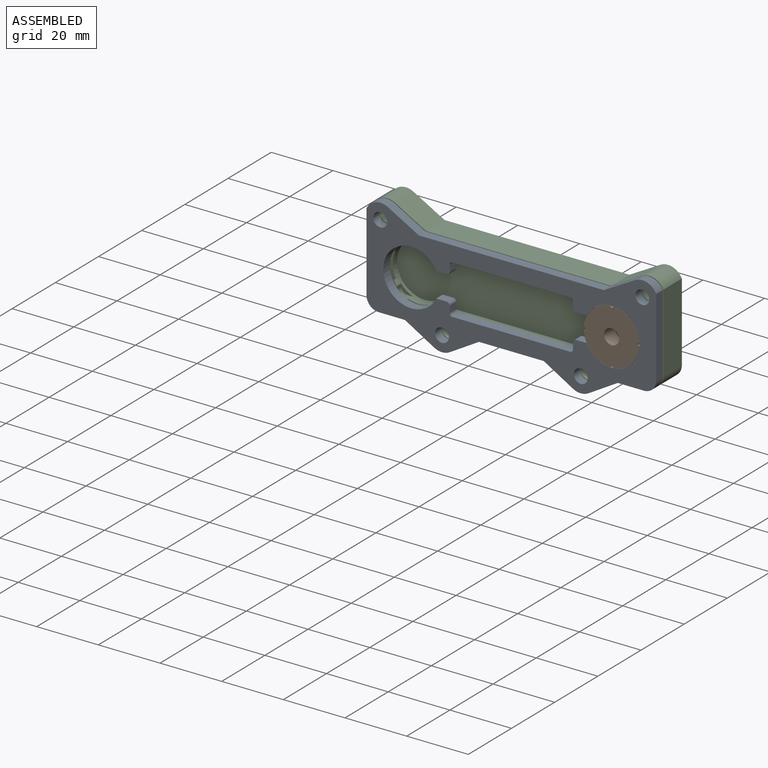
[diagram: assembled view]
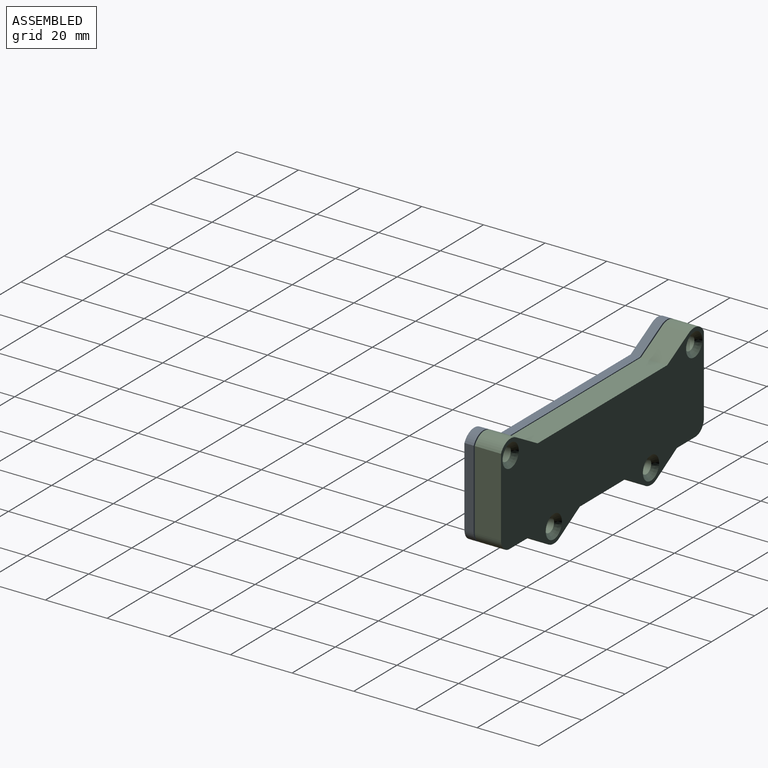
[diagram: assembled view, second angle]
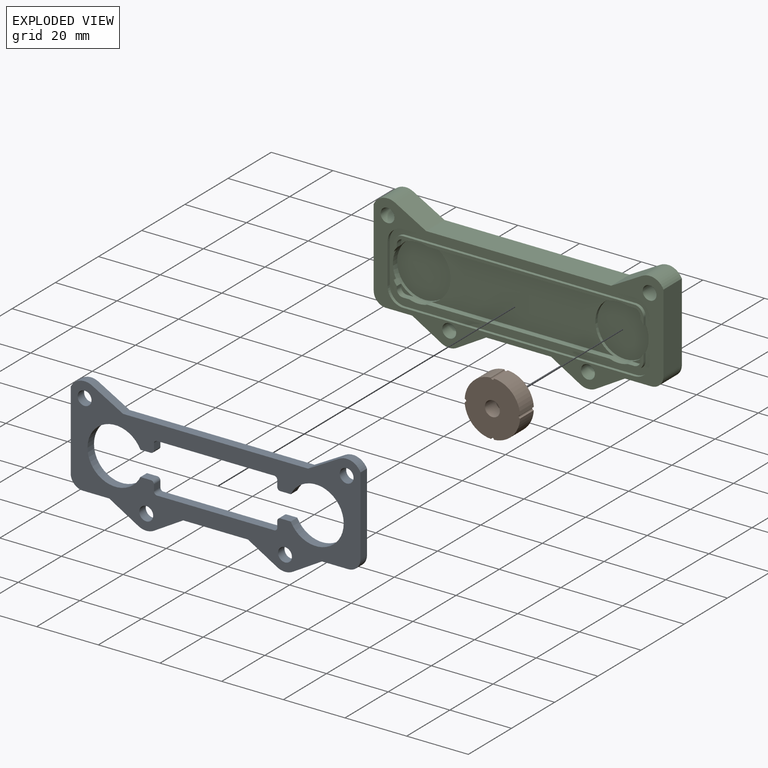
[diagram: exploded view]
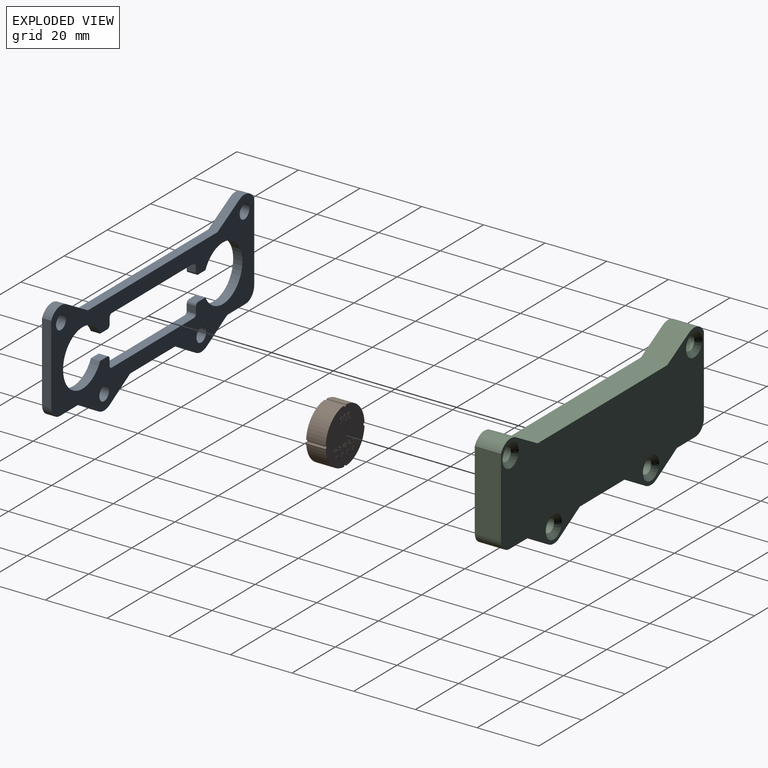
[diagram: exploded view, second angle]
ASSEMBLY  parts=3 mates=2
PART A: 44 faces, bbox 94x3x38.5 mm
  f0: plane 94x38.5mm, normal (0,1,0), area 1460.2mm2, adj f2,f3,f4,f5,f6,f7,f8,f9
  f1: plane 94x38.5mm, normal (0,-1,0), area 1460.2mm2, adj f2,f3,f4,f5,f6,f7,f8,f9
  f2: plane 21x3mm, normal (0,0,1), area 63mm2, adj f0,f1,f3,f22
  f3: plane 9.47x5.56mm, normal (-0.51,0,0.86), area 32.9mm2, adj f0,f1,f2,f4
  f4: cylinder r=5mm len=5.07mm, axis (0,-1,0), area 15.9mm2, adj f0,f1,f3,f5
  f5: plane 9.47x5.56mm, normal (0.51,0,0.86), area 32.9mm2, adj f0,f1,f4,f6
  f6: plane 8.5x3mm, normal (0,0,1), area 25.5mm2, adj f0,f1,f5,f7
  f7: cylinder r=4mm len=4mm, axis (0,-1,0), area 18.8mm2, adj f0,f1,f6,f8
  f8: plane 25.43x3mm, normal (1,0,0), area 76.3mm2, adj f0,f1,f7,f9
  f9: cylinder r=5mm len=6.94mm, axis (0,-1,0), area 24.4mm2, adj f0,f1,f8,f10
  f10: plane 10.06x5.62mm, normal (-0.49,0,-0.87), area 34.6mm2, adj f0,f1,f9,f11
  f11: plane 60x3mm, normal (0,0,-1), area 180mm2, adj f0,f1,f10,f12
  f12: plane 10.06x5.62mm, normal (0.49,0,-0.87), area 34.6mm2, adj f0,f1,f11,f13
  f13: cylinder r=5mm len=6.94mm, axis (0,-1,0), area 24.4mm2, adj f0,f1,f12,f14
  f14: plane 25.43x3mm, normal (-1,0,0), area 76.3mm2, adj f0,f1,f13,f15
  f15: cylinder r=4mm len=4mm, axis (0,-1,0), area 18.8mm2, adj f0,f1,f14,f16
  f16: plane 8.5x3mm, normal (0,0,1), area 25.5mm2, adj f0,f1,f15,f17
  f17: plane 9.47x5.56mm, normal (-0.51,0,0.86), area 32.9mm2, adj f0,f1,f16,f18
  f18: cylinder r=5mm len=5.07mm, axis (0,-1,0), area 15.9mm2, adj f0,f1,f17,f22
  f19: cylinder r=2.25mm len=4.5mm, axis (0,-1,0), area 42.4mm2, adj f0,f1
  f20: cylinder r=2.25mm len=4.5mm, axis (0,-1,0), area 42.4mm2, adj f0,f1
  f21: cylinder r=2.25mm len=4.5mm, axis (0,-1,0), area 42.4mm2, adj f0,f1
  f22: plane 9.47x5.56mm, normal (0.51,0,0.86), area 32.9mm2, adj f0,f1,f2,f18
  f23: cylinder r=2.25mm len=4.5mm, axis (0,-1,0), area 42.4mm2, adj f0,f1
  f24: cylinder r=1mm len=3mm, axis (0,1,0), area 4.7mm2, adj f0,f1,f25,f43
  f25: plane 3.38x3mm, normal (0,0,-1), area 10.1mm2, adj f0,f1,f24,f26
  f26: cylinder r=9.05mm len=18.1mm, axis (0,1,0), area 145.7mm2, adj f0,f1,f25,f27
  f27: plane 3.38x3mm, normal (0,0,1), area 10.1mm2, adj f0,f1,f26,f28
  f28: cylinder r=1mm len=3mm, axis (0,1,0), area 4.7mm2, adj f0,f1,f27,f29
  f29: plane 3x2mm, normal (-1,0,0), area 6mm2, adj f0,f1,f28,f30
  f30: cylinder r=1mm len=3mm, axis (0,1,0), area 4.7mm2, adj f0,f1,f29,f31
  f31: plane 38x3mm, normal (0,0,1), area 114mm2, adj f0,f1,f30,f32
  f32: cylinder r=1mm len=3mm, axis (0,1,0), area 4.7mm2, adj f0,f1,f31,f33
  f33: plane 3x2mm, normal (1,0,0), area 6mm2, adj f0,f1,f32,f34
  f34: cylinder r=1mm len=3mm, axis (0,1,0), area 4.7mm2, adj f0,f1,f33,f35
  f35: plane 3.38x3mm, normal (0,0,1), area 10.1mm2, adj f0,f1,f34,f36
  f36: cylinder r=9.05mm len=18.1mm, axis (0,1,0), area 145.7mm2, adj f0,f1,f35,f37
  f37: plane 3.38x3mm, normal (0,0,-1), area 10.1mm2, adj f0,f1,f36,f38
  f38: cylinder r=1mm len=3mm, axis (0,1,0), area 4.7mm2, adj f0,f1,f37,f39
  f39: plane 3x2mm, normal (1,0,0), area 6mm2, adj f0,f1,f38,f40
  f40: cylinder r=1mm len=3mm, axis (0,1,0), area 4.7mm2, adj f0,f1,f39,f41
  f41: plane 38x3mm, normal (0,0,-1), area 114mm2, adj f0,f1,f40,f42
  f42: cylinder r=1mm len=3mm, axis (0,1,0), area 4.7mm2, adj f0,f1,f41,f43
  f43: plane 3x2mm, normal (-1,0,0), area 6mm2, adj f0,f1,f24,f42
PART B: 228 faces, bbox 18x6.5x18 mm
  f0: plane 17.97x17.97mm, normal (0,1,0), area 236.4mm2, adj f1,f2,f3,f4,f5,f6,f7,f8
  f1: cylinder r=0.5mm len=6.35mm, axis (0,1,0), area 9.8mm2, adj f0,f2,f8,f9
  f2: cylinder r=9mm len=8.49mm, axis (0,1,0), area 83.4mm2, adj f0,f1,f3,f9
  f3: cylinder r=0.5mm len=6.35mm, axis (0,1,0), area 9.8mm2, adj f0,f2,f4,f9
  f4: cylinder r=9mm len=8.49mm, axis (0,1,0), area 83.4mm2, adj f0,f3,f5,f9
  f5: cylinder r=0.5mm len=6.35mm, axis (0,1,0), area 9.8mm2, adj f0,f4,f6,f9
  f6: cylinder r=9mm len=8.49mm, axis (0,1,0), area 83.4mm2, adj f0,f5,f7,f9
  f7: cylinder r=0.5mm len=6.35mm, axis (0,1,0), area 9.8mm2, adj f0,f6,f8,f9
  f8: cylinder r=9mm len=8.49mm, axis (0,1,0), area 83.4mm2, adj f0,f1,f7,f9
  f9: plane 17.97x17.97mm, normal (0,-1,0), area 234.1mm2, adj f1,f2,f3,f4,f5,f6,f7,f8
  f10: cylinder r=2.45mm len=5mm, axis (0,-1,0), area 77mm2, adj f9,f11
  f11: plane 4.9x4.9mm, normal (0,-1,0), area 18.9mm2, adj f10
  f12: plane 1x0.1mm, normal (-1,0,0), area 0.1mm2, adj f0,f13,f15,f16
  f13: plane 1x0.1mm, normal (0,0,1), area 0.1mm2, adj f0,f12,f14,f16
  f14: plane 1x0.1mm, normal (1,0,0), area 0.1mm2, adj f0,f13,f15,f16
  f15: plane 1x0.1mm, normal (0,0,-1), area 0.1mm2, adj f0,f12,f14,f16
  f16: plane 1x1mm, normal (0,1,0), area 1mm2, adj f12,f13,f14,f15
  f17: plane 1x0.1mm, normal (-1,0,0), area 0.1mm2, adj f0,f18,f20,f21
  f18: plane 1x0.1mm, normal (0,0,1), area 0.1mm2, adj f0,f17,f19,f21
  f19: plane 1x0.1mm, normal (1,0,0), area 0.1mm2, adj f0,f18,f20,f21
  f20: plane 1x0.1mm, normal (0,0,-1), area 0.1mm2, adj f0,f17,f19,f21
  f21: plane 1x1mm, normal (0,1,0), area 1mm2, adj f17,f18,f19,f20
  f22: plane 1x0.1mm, normal (-1,0,0), area 0.1mm2, adj f0,f23,f25,f26
  f23: plane 1x0.1mm, normal (0,0,1), area 0.1mm2, adj f0,f22,f24,f26
  f24: plane 1x0.1mm, normal (1,0,0), area 0.1mm2, adj f0,f23,f25,f26
  f25: plane 1x0.1mm, normal (0,0,-1), area 0.1mm2, adj f0,f22,f24,f26
  f26: plane 1x1mm, normal (0,1,0), area 1mm2, adj f22,f23,f24,f25
  f27: plane 1x0.1mm, normal (1,0,0), area 0.1mm2, adj f0,f28,f30,f31
  f28: plane 1x0.1mm, normal (0,0,-1), area 0.1mm2, adj f0,f27,f29,f31
  f29: plane 1x0.1mm, normal (-1,0,0), area 0.1mm2, adj f0,f28,f30,f31
  f30: plane 1x0.1mm, normal (0,0,1), area 0.1mm2, adj f0,f27,f29,f31
  f31: plane 1x1mm, normal (0,1,0), area 1mm2, adj f27,f28,f29,f30
  f32: plane 0.47x0.1mm, normal (0,0,-1), area 0mm2, adj f0,f33,f41,f42
  f33: plane 2.24x0.1mm, normal (-1,0,0), area 0.2mm2, adj f0,f32,f34,f42
  f34: plane 0.39x0.1mm, normal (0,0,1), area 0mm2, adj f0,f33,f35,f42
  f35: plane 0.72x0.57mm, normal (0.62,0,0.78), area 0.1mm2, adj f0,f34,f36,f42
  f36: plane 0.28x0.23mm, normal (0.78,0,-0.63), area 0mm2, adj f0,f35,f37,f42
  f37: plane 0.26x0.21mm, normal (-0.63,0,-0.78), area 0mm2, adj f0,f36,f38,f42
  f38: extruded ~0.16x0.15mm, area 0mm2, adj f0,f37,f39,f42
  f39: plane 0.23x0.1mm, normal (1,0,0.03), area 0mm2, adj f0,f38,f40,f42
  f40: plane 0.21x0.1mm, normal (1,0,0.02), area 0mm2, adj f0,f39,f41,f42
  f41: plane 1.3x0.1mm, normal (1,0,0), area 0.1mm2, adj f0,f32,f40,f42
  f42: plane 2.24x1.11mm, normal (0,1,0), area 1.3mm2, adj f32,f33,f34,f35,f36,f37,f38,f39
  f43: extruded ~0.59x0.1mm, area 0.1mm2, adj f44,f58,f59,f60
  f44: extruded ~0.59x0.1mm, area 0.1mm2, adj f43,f45,f59,f60
  f45: extruded ~0.24x0.18mm, area 0mm2, adj f44,f46,f59,f60
  f46: extruded ~0.24x0.18mm, area 0mm2, adj f45,f47,f59,f60
  f47: extruded ~0.59x0.1mm, area 0.1mm2, adj f46,f48,f59,f60
  f48: extruded ~0.59x0.1mm, area 0.1mm2, adj f47,f49,f59,f60
  f49: extruded ~0.24x0.18mm, area 0mm2, adj f48,f58,f59,f60
  f50: extruded ~0.87x0.19mm, area 0.1mm2, adj f0,f51,f57,f59
  f51: extruded ~0.86x0.2mm, area 0.1mm2, adj f0,f50,f52,f59
  f52: extruded ~0.59x0.29mm, area 0.1mm2, adj f0,f51,f53,f59
  f53: extruded ~0.59x0.28mm, area 0.1mm2, adj f0,f52,f54,f59
  f54: extruded ~0.87x0.19mm, area 0.1mm2, adj f0,f53,f55,f59
  f55: extruded ~0.86x0.2mm, area 0.1mm2, adj f0,f54,f56,f59
  f56: extruded ~0.58x0.29mm, area 0.1mm2, adj f0,f55,f57,f59
  f57: extruded ~0.59x0.28mm, area 0.1mm2, adj f0,f50,f56,f59
  f58: extruded ~0.24x0.18mm, area 0mm2, adj f43,f49,f59,f60
  f59: plane 2.31x1.57mm, normal (0,1,0), area 2.2mm2, adj f43,f44,f45,f46,f47,f48,f49,f50
  f60: plane 1.54x0.62mm, normal (0,1,0), area 0.8mm2, adj f43,f44,f45,f46,f47,f48,f49,f58
  f61: extruded ~0.59x0.1mm, area 0.1mm2, adj f62,f76,f77,f78
  f62: extruded ~0.59x0.1mm, area 0.1mm2, adj f61,f63,f77,f78
  f63: extruded ~0.24x0.18mm, area 0mm2, adj f62,f64,f77,f78
  f64: extruded ~0.24x0.18mm, area 0mm2, adj f63,f65,f77,f78
  f65: extruded ~0.59x0.1mm, area 0.1mm2, adj f64,f66,f77,f78
  f66: extruded ~0.59x0.1mm, area 0.1mm2, adj f65,f67,f77,f78
  f67: extruded ~0.24x0.18mm, area 0mm2, adj f66,f76,f77,f78
  f68: extruded ~0.87x0.19mm, area 0.1mm2, adj f0,f69,f75,f77
  f69: extruded ~0.86x0.2mm, area 0.1mm2, adj f0,f68,f70,f77
  f70: extruded ~0.59x0.29mm, area 0.1mm2, adj f0,f69,f71,f77
  f71: extruded ~0.59x0.28mm, area 0.1mm2, adj f0,f70,f72,f77
  f72: extruded ~0.87x0.19mm, area 0.1mm2, adj f0,f71,f73,f77
  f73: extruded ~0.86x0.2mm, area 0.1mm2, adj f0,f72,f74,f77
  f74: extruded ~0.58x0.29mm, area 0.1mm2, adj f0,f73,f75,f77
  f75: extruded ~0.59x0.28mm, area 0.1mm2, adj f0,f68,f74,f77
  f76: extruded ~0.24x0.18mm, area 0mm2, adj f61,f67,f77,f78
  f77: plane 2.31x1.57mm, normal (0,1,0), area 2.2mm2, adj f61,f62,f63,f64,f65,f66,f67,f68
  f78: plane 1.54x0.62mm, normal (0,1,0), area 0.8mm2, adj f61,f62,f63,f64,f65,f66,f67,f76
  f79: plane 0.27x0.1mm, normal (0,0,1), area 0mm2, adj f0,f80,f88,f89
  f80: plane 0.74x0.24mm, normal (0.95,0,0.3), area 0.1mm2, adj f0,f79,f81,f89
  f81: extruded ~0.28x0.1mm, area 0mm2, adj f0,f80,f82,f89
  f82: extruded ~0.12x0.1mm, area 0mm2, adj f0,f81,f83,f89
  f83: extruded ~0.15x0.1mm, area 0mm2, adj f0,f82,f84,f89
  f84: plane 0.74x0.24mm, normal (-0.95,0,0.3), area 0.1mm2, adj f0,f83,f85,f89
  f85: plane 0.27x0.1mm, normal (0,0,1), area 0mm2, adj f0,f84,f86,f89
  f86: plane 1.25x0.42mm, normal (0.95,0,-0.32), area 0.1mm2, adj f0,f85,f87,f89
  f87: plane 0.29x0.1mm, normal (0,0,-1), area 0mm2, adj f0,f86,f88,f89
  f88: plane 1.25x0.43mm, normal (-0.95,0,-0.32), area 0.1mm2, adj f0,f79,f87,f89
  f89: plane 1.25x1.14mm, normal (0,1,0), area 0.6mm2, adj f79,f80,f81,f82,f83,f84,f85,f86
  f90: plane 0.33x0.1mm, normal (0,0,-1), area 0mm2, adj f0,f91,f101,f102
  f91: plane 0.33x0.1mm, normal (1,0,0), area 0mm2, adj f0,f90,f92,f102
  f92: plane 0.19x0.1mm, normal (0,0,-1), area 0mm2, adj f0,f91,f93,f102
  f93: plane 0.33x0.1mm, normal (-1,0,0), area 0mm2, adj f0,f92,f94,f102
  f94: plane 0.33x0.1mm, normal (0,0,-1), area 0mm2, adj f0,f93,f95,f102
  f95: plane 0.19x0.1mm, normal (-1,0,0), area 0mm2, adj f0,f94,f96,f102
  f96: plane 0.33x0.1mm, normal (0,0,1), area 0mm2, adj f0,f95,f97,f102
  f97: plane 0.33x0.1mm, normal (-1,0,0), area 0mm2, adj f0,f96,f98,f102
  f98: plane 0.19x0.1mm, normal (0,0,1), area 0mm2, adj f0,f97,f99,f102
  f99: plane 0.33x0.1mm, normal (1,0,0), area 0mm2, adj f0,f98,f100,f102
  f100: plane 0.33x0.1mm, normal (0,0,1), area 0mm2, adj f0,f99,f101,f102
  f101: plane 0.19x0.1mm, normal (1,0,0), area 0mm2, adj f0,f90,f100,f102
  f102: plane 0.85x0.85mm, normal (0,1,0), area 0.3mm2, adj f90,f91,f92,f93,f94,f95,f96,f97
  f103: extruded ~0.27x0.12mm, area 0mm2, adj f0,f104,f130,f131
  f104: extruded ~0.21x0.1mm, area 0mm2, adj f0,f103,f105,f131
  f105: extruded ~0.24x0.17mm, area 0mm2, adj f0,f104,f106,f131
  f106: extruded ~0.17x0.1mm, area 0mm2, adj f0,f105,f107,f131
  f107: extruded ~0.1x0.05mm, area 0mm2, adj f0,f106,f108,f131
  f108: extruded ~0.1x0.06mm, area 0mm2, adj f0,f107,f109,f131
  f109: extruded ~0.1x0.09mm, area 0mm2, adj f0,f108,f110,f131
  f110: extruded ~0.12x0.1mm, area 0mm2, adj f0,f109,f111,f131
  f111: extruded ~0.13x0.1mm, area 0mm2, adj f0,f110,f112,f131
  f112: extruded ~0.17x0.1mm, area 0mm2, adj f0,f111,f113,f131
  f113: plane 0.21x0.1mm, normal (-0.92,0,-0.38), area 0mm2, adj f0,f112,f114,f131
  f114: extruded ~0.19x0.1mm, area 0mm2, adj f0,f113,f115,f131
  f115: extruded ~0.19x0.1mm, area 0mm2, adj f0,f114,f116,f131
  f116: extruded ~0.31x0.1mm, area 0mm2, adj f0,f115,f117,f131
  f117: extruded ~0.26x0.11mm, area 0mm2, adj f0,f116,f118,f131
  f118: extruded ~0.15x0.1mm, area 0mm2, adj f0,f117,f119,f131
  f119: extruded ~0.12x0.1mm, area 0mm2, adj f0,f118,f120,f131
  f120: extruded ~0.17x0.1mm, area 0mm2, adj f0,f119,f121,f131
  f121: extruded ~0.16x0.1mm, area 0mm2, adj f0,f120,f122,f131
  f122: extruded ~0.1x0.06mm, area 0mm2, adj f0,f121,f123,f131
  f123: extruded ~0.1x0.07mm, area 0mm2, adj f0,f122,f124,f131
  f124: extruded ~0.1x0.1mm, area 0mm2, adj f0,f123,f125,f131
  f125: extruded ~0.13x0.1mm, area 0mm2, adj f0,f124,f126,f131
  f126: extruded ~0.16x0.1mm, area 0mm2, adj f0,f125,f127,f131
  f127: extruded ~0.21x0.1mm, area 0mm2, adj f0,f126,f128,f131
  f128: plane 0.25x0.1mm, normal (1,0,0), area 0mm2, adj f0,f127,f129,f131
  f129: extruded ~0.35x0.1mm, area 0mm2, adj f0,f128,f130,f131
  f130: extruded ~0.34x0.1mm, area 0mm2, adj f0,f103,f129,f131
  f131: plane 1.29x0.81mm, normal (0,1,0), area 0.6mm2, adj f103,f104,f105,f106,f107,f108,f109,f110
  f132: plane 0.21x0.1mm, normal (1,0,0), area 0mm2, adj f0,f133,f135,f136
  f133: plane 0.46x0.1mm, normal (0,0,-1), area 0mm2, adj f0,f132,f134,f136
  f134: plane 0.21x0.1mm, normal (-1,0,0), area 0mm2, adj f0,f133,f135,f136
  f135: plane 0.46x0.1mm, normal (0,0,1), area 0mm2, adj f0,f132,f134,f136
  f136: plane 0.46x0.21mm, normal (0,1,0), area 0.1mm2, adj f132,f133,f134,f135
  f137: plane 0.5x0.1mm, normal (0,0,1), area 0mm2, adj f0,f138,f155,f156
  f138: plane 0.22x0.1mm, normal (1,0,0), area 0mm2, adj f0,f137,f139,f156
  f139: plane 0.24x0.1mm, normal (0,0,-1), area 0mm2, adj f0,f138,f140,f156
  f140: plane 0.26x0.1mm, normal (1,0,0), area 0mm2, adj f0,f139,f141,f156
  f141: extruded ~0.17x0.1mm, area 0mm2, adj f0,f140,f142,f156
  f142: extruded ~0.24x0.11mm, area 0mm2, adj f0,f141,f143,f156
  f143: extruded ~0.31x0.1mm, area 0mm2, adj f0,f142,f144,f156
  f144: extruded ~0.31x0.1mm, area 0mm2, adj f0,f143,f145,f156
  f145: extruded ~0.28x0.12mm, area 0mm2, adj f0,f144,f146,f156
  f146: extruded ~0.29x0.1mm, area 0mm2, adj f0,f145,f147,f156
  f147: plane 0.21x0.1mm, normal (-0.92,0,-0.38), area 0mm2, adj f0,f146,f148,f156
  f148: extruded ~0.37x0.1mm, area 0mm2, adj f0,f147,f149,f156
  f149: extruded ~0.48x0.17mm, area 0.1mm2, adj f0,f148,f150,f156
  f150: extruded ~0.47x0.17mm, area 0.1mm2, adj f0,f149,f151,f156
  f151: extruded ~0.48x0.15mm, area 0.1mm2, adj f0,f150,f152,f156
  f152: extruded ~0.43x0.17mm, area 0mm2, adj f0,f151,f153,f156
  f153: extruded ~0.22x0.1mm, area 0mm2, adj f0,f152,f154,f156
  f154: extruded ~0.23x0.1mm, area 0mm2, adj f0,f153,f155,f156
  f155: plane 0.65x0.1mm, normal (-1,0,0), area 0.1mm2, adj f0,f137,f154,f156
  f156: plane 1.29x1.03mm, normal (0,1,0), area 0.8mm2, adj f137,f138,f139,f140,f141,f142,f143,f144
  f157: plane 0.34x0.1mm, normal (0,0,-1), area 0mm2, adj f0,f158,f170,f171
  f158: plane 1.25x0.1mm, normal (-1,0,0), area 0.1mm2, adj f0,f157,f159,f171
  f159: plane 0.24x0.1mm, normal (0,0,1), area 0mm2, adj f0,f158,f160,f171
  f160: plane 0.59x0.1mm, normal (1,0,0), area 0.1mm2, adj f0,f159,f161,f171
  f161: extruded ~0.34x0.1mm, area 0mm2, adj f0,f160,f162,f171
  f162: plane 0.1x0.01mm, normal (0,0,1), area 0mm2, adj f0,f161,f163,f171
  f163: plane 0.94x0.54mm, normal (-0.87,0,0.5), area 0.1mm2, adj f0,f162,f164,f171
  f164: plane 0.33x0.1mm, normal (0,0,1), area 0mm2, adj f0,f163,f165,f171
  f165: plane 1.25x0.1mm, normal (1,0,0), area 0.1mm2, adj f0,f164,f166,f171
  f166: plane 0.24x0.1mm, normal (0,0,-1), area 0mm2, adj f0,f165,f167,f171
  f167: plane 0.59x0.1mm, normal (-1,0,0), area 0.1mm2, adj f0,f166,f168,f171
  f168: extruded ~0.36x0.1mm, area 0mm2, adj f0,f167,f169,f171
  f169: plane 0.1x0.01mm, normal (0,0,-1), area 0mm2, adj f0,f168,f170,f171
  f170: plane 0.95x0.54mm, normal (0.87,0,-0.5), area 0.1mm2, adj f0,f157,f169,f171
  f171: plane 1.25x1.11mm, normal (0,1,0), area 0.9mm2, adj f157,f158,f159,f160,f161,f162,f163,f164
  f172: extruded ~0.4x0.36mm, area 0.1mm2, adj f173,f183,f184,f185
  f173: extruded ~0.41x0.38mm, area 0.1mm2, adj f172,f174,f184,f185
  f174: plane 0.11x0.1mm, normal (0,0,1), area 0mm2, adj f173,f175,f184,f185
  f175: plane 0.81x0.1mm, normal (-1,0,0), area 0.1mm2, adj f174,f183,f184,f185
  f176: extruded ~0.47x0.18mm, area 0.1mm2, adj f0,f177,f182,f184
  f177: extruded ~0.45x0.17mm, area 0mm2, adj f0,f176,f178,f184
  f178: extruded ~0.48x0.16mm, area 0.1mm2, adj f0,f177,f179,f184
  f179: plane 0.39x0.1mm, normal (0,0,1), area 0mm2, adj f0,f178,f180,f184
  f180: plane 1.25x0.1mm, normal (1,0,0), area 0.1mm2, adj f0,f179,f181,f184
  f181: plane 0.35x0.1mm, normal (0,0,-1), area 0mm2, adj f0,f180,f182,f184
  f182: extruded ~0.51x0.16mm, area 0.1mm2, adj f0,f176,f181,f184
  f183: plane 0.14x0.1mm, normal (0,0,-1), area 0mm2, adj f172,f175,f184,f185
  f184: plane 1.25x1.04mm, normal (0,1,0), area 0.8mm2, adj f172,f173,f174,f175,f176,f177,f178,f179
  f185: plane 0.81x0.5mm, normal (0,1,0), area 0.4mm2, adj f172,f173,f174,f175,f183
  f186: extruded ~0.27x0.12mm, area 0mm2, adj f0,f187,f213,f214
  f187: extruded ~0.21x0.1mm, area 0mm2, adj f0,f186,f188,f214
  f188: extruded ~0.24x0.17mm, area 0mm2, adj f0,f187,f189,f214
  f189: extruded ~0.17x0.1mm, area 0mm2, adj f0,f188,f190,f214
  f190: extruded ~0.1x0.05mm, area 0mm2, adj f0,f189,f191,f214
  f191: extruded ~0.1x0.06mm, area 0mm2, adj f0,f190,f192,f214
  f192: extruded ~0.1x0.09mm, area 0mm2, adj f0,f191,f193,f214
  f193: extruded ~0.12x0.1mm, area 0mm2, adj f0,f192,f194,f214
  f194: extruded ~0.13x0.1mm, area 0mm2, adj f0,f193,f195,f214
  f195: extruded ~0.17x0.1mm, area 0mm2, adj f0,f194,f196,f214
  f196: plane 0.21x0.1mm, normal (-0.92,0,-0.38), area 0mm2, adj f0,f195,f197,f214
  f197: extruded ~0.19x0.1mm, area 0mm2, adj f0,f196,f198,f214
  f198: extruded ~0.19x0.1mm, area 0mm2, adj f0,f197,f199,f214
  f199: extruded ~0.31x0.1mm, area 0mm2, adj f0,f198,f200,f214
  f200: extruded ~0.26x0.11mm, area 0mm2, adj f0,f199,f201,f214
  f201: extruded ~0.15x0.1mm, area 0mm2, adj f0,f200,f202,f214
  f202: extruded ~0.12x0.1mm, area 0mm2, adj f0,f201,f203,f214
  f203: extruded ~0.17x0.1mm, area 0mm2, adj f0,f202,f204,f214
  f204: extruded ~0.16x0.1mm, area 0mm2, adj f0,f203,f205,f214
  f205: extruded ~0.1x0.06mm, area 0mm2, adj f0,f204,f206,f214
  f206: extruded ~0.1x0.07mm, area 0mm2, adj f0,f205,f207,f214
  f207: extruded ~0.1x0.1mm, area 0mm2, adj f0,f206,f208,f214
  f208: extruded ~0.13x0.1mm, area 0mm2, adj f0,f207,f209,f214
  f209: extruded ~0.16x0.1mm, area 0mm2, adj f0,f208,f210,f214
  f210: extruded ~0.21x0.1mm, area 0mm2, adj f0,f209,f211,f214
  f211: plane 0.25x0.1mm, normal (1,0,0), area 0mm2, adj f0,f210,f212,f214
  f212: extruded ~0.35x0.1mm, area 0mm2, adj f0,f211,f213,f214
  f213: extruded ~0.34x0.1mm, area 0mm2, adj f0,f186,f212,f214
  f214: plane 1.29x0.81mm, normal (0,1,0), area 0.6mm2, adj f186,f187,f188,f189,f190,f191,f192,f193
  f215: plane 0.33x0.1mm, normal (0,0,-1), area 0mm2, adj f0,f216,f226,f227
  f216: plane 0.33x0.1mm, normal (1,0,0), area 0mm2, adj f0,f215,f217,f227
  f217: plane 0.19x0.1mm, normal (0,0,-1), area 0mm2, adj f0,f216,f218,f227
  f218: plane 0.33x0.1mm, normal (-1,0,0), area 0mm2, adj f0,f217,f219,f227
  f219: plane 0.33x0.1mm, normal (0,0,-1), area 0mm2, adj f0,f218,f220,f227
  f220: plane 0.19x0.1mm, normal (-1,0,0), area 0mm2, adj f0,f219,f221,f227
  f221: plane 0.33x0.1mm, normal (0,0,1), area 0mm2, adj f0,f220,f222,f227
  f222: plane 0.33x0.1mm, normal (-1,0,0), area 0mm2, adj f0,f221,f223,f227
  f223: plane 0.19x0.1mm, normal (0,0,1), area 0mm2, adj f0,f222,f224,f227
  f224: plane 0.33x0.1mm, normal (1,0,0), area 0mm2, adj f0,f223,f225,f227
  f225: plane 0.33x0.1mm, normal (0,0,1), area 0mm2, adj f0,f224,f226,f227
  f226: plane 0.19x0.1mm, normal (1,0,0), area 0mm2, adj f0,f215,f225,f227
  f227: plane 0.85x0.85mm, normal (0,1,0), area 0.3mm2, adj f215,f216,f217,f218,f219,f220,f221,f222
PART C: 72 faces, bbox 94x8.5x38.5 mm
  f0: plane 81x5.38mm, normal (0,1,0), area 82mm2, adj f5,f7,f8,f9,f10,f15,f17,f20
  f1: plane 81x5.38mm, normal (0,1,0), area 82mm2, adj f2,f3,f4,f6,f16,f19,f22,f23
  f2: plane 59.08x2mm, normal (0,0,-1), area 118.2mm2, adj f1,f11,f68,f70
  f3: plane 2.04x2mm, normal (0,0,-1), area 4.1mm2, adj f1,f19,f24,f68
  f4: plane 2.04x2mm, normal (0,0,-1), area 4.1mm2, adj f1,f13,f23,f70
  f5: plane 2x0.84mm, normal (-1,0,0), area 1.7mm2, adj f0,f14,f20,f68
  f6: plane 2x0.84mm, normal (-1,0,0), area 1.7mm2, adj f1,f19,f24,f68
  f7: plane 59.08x2mm, normal (0,0,1), area 118.2mm2, adj f0,f11,f68,f70
  f8: plane 2.04x2mm, normal (0,0,1), area 4.1mm2, adj f0,f14,f20,f68
  f9: plane 2.04x2mm, normal (0,0,1), area 4.1mm2, adj f0,f12,f21,f70
  f10: plane 2x0.84mm, normal (1,0,0), area 1.7mm2, adj f0,f12,f21,f70
  f11: plane 59.08x17mm, normal (0,1,0), area 854.5mm2, adj f2,f7,f68,f70
  f12: plane 4.04x2.84mm, normal (0,1,0), area 3.7mm2, adj f9,f10,f21,f70
  f13: plane 4.04x2.84mm, normal (0,1,0), area 3.7mm2, adj f4,f22,f23,f70
  f14: plane 4.04x2.84mm, normal (0,1,0), area 3.7mm2, adj f5,f8,f20,f68
  f15: plane 2.38x1mm, normal (1,0,0), area 2.4mm2, adj f0,f18,f32,f68
  f16: plane 2.38x1mm, normal (1,0,0), area 2.4mm2, adj f1,f18,f33,f68
  f17: plane 2.38x1mm, normal (-1,0,0), area 2.4mm2, adj f0,f18,f37,f70
  f18: plane 85x23mm, normal (0,1,0), area 391.1mm2, adj f15,f16,f17,f25,f26,f27,f28,f29
  f19: cylinder r=2mm len=2mm, axis (0,1,0), area 6.3mm2, adj f1,f3,f6,f24
  f20: cylinder r=2mm len=2mm, axis (0,1,0), area 6.3mm2, adj f0,f5,f8,f14
  f21: cylinder r=2mm len=2mm, axis (0,1,0), area 6.3mm2, adj f0,f9,f10,f12
  f22: plane 2x0.84mm, normal (1,0,0), area 1.7mm2, adj f1,f13,f23,f70
  f23: cylinder r=2mm len=2mm, axis (0,1,0), area 6.3mm2, adj f1,f4,f13,f22
  f24: plane 4.04x2.84mm, normal (0,1,0), area 3.7mm2, adj f3,f6,f19,f68
  f25: plane 75x1mm, normal (0,0,-1), area 75mm2, adj f18,f26,f39,f67
  f26: cylinder r=5mm len=5mm, axis (0,1,0), area 7.9mm2, adj f18,f25,f27,f67
  f27: plane 13x1mm, normal (-1,0,0), area 13mm2, adj f18,f26,f28,f67
  f28: cylinder r=5mm len=5mm, axis (0,1,0), area 7.9mm2, adj f18,f27,f29,f67
  f29: plane 75x1mm, normal (0,0,1), area 75mm2, adj f18,f28,f30,f67
  f30: cylinder r=5mm len=5mm, axis (0,1,0), area 7.9mm2, adj f18,f29,f31,f67
  f31: plane 13x1mm, normal (1,0,0), area 13mm2, adj f18,f30,f39,f67
  f32: cylinder r=3mm len=3mm, axis (0,1,0), area 4.7mm2, adj f0,f15,f18,f38
  f33: cylinder r=3mm len=3mm, axis (0,1,0), area 4.7mm2, adj f1,f16,f18,f34
  f34: plane 75x1mm, normal (0,0,1), area 75mm2, adj f1,f18,f33,f35
  f35: cylinder r=3mm len=3mm, axis (0,1,0), area 4.7mm2, adj f1,f18,f34,f36
  f36: plane 2.38x1mm, normal (-1,0,0), area 2.4mm2, adj f1,f18,f35,f70
  f37: cylinder r=3mm len=3mm, axis (0,1,0), area 4.7mm2, adj f0,f17,f18,f38
  f38: plane 75x1mm, normal (0,0,-1), area 75mm2, adj f0,f18,f32,f37
  f39: cylinder r=5mm len=5mm, axis (0,1,0), area 7.9mm2, adj f18,f25,f31,f67
  f40: cone r=3.75mm half-angle=45deg, axis (0,-1,0), area 40mm2, adj f44,f45
  f41: cone r=3.75mm half-angle=45deg, axis (0,-1,0), area 40mm2, adj f44,f46
  f42: cone r=2.25mm half-angle=45deg, axis (0,-1,0), area 40mm2, adj f44,f47
  f43: cone r=2.25mm half-angle=45deg, axis (0,-1,0), area 40mm2, adj f44,f48
  f44: plane 94x38.5mm, normal (0,-1,0), area 2561.8mm2, adj f40,f41,f42,f43,f49,f50,f51,f52
  f45: cylinder r=2.25mm len=7mm, axis (0,1,0), area 99mm2, adj f40,f67
  f46: cylinder r=2.25mm len=7mm, axis (0,1,0), area 99mm2, adj f41,f67
  f47: cylinder r=2.25mm len=7mm, axis (0,1,0), area 99mm2, adj f42,f67
  f48: cylinder r=2.25mm len=7mm, axis (0,1,0), area 99mm2, adj f43,f67
  f49: plane 9.47x8.5mm, normal (0.51,0,0.86), area 93.3mm2, adj f44,f50,f66,f67
  f50: cylinder r=5mm len=8.5mm, axis (0,1,0), area 45.1mm2, adj f44,f49,f51,f67
  f51: plane 9.47x8.5mm, normal (-0.51,0,0.86), area 93.3mm2, adj f44,f50,f52,f67
  f52: plane 8.5x8.5mm, normal (0,0,1), area 72.2mm2, adj f44,f51,f53,f67
  f53: cylinder r=4mm len=8.5mm, axis (0,1,0), area 53.4mm2, adj f44,f52,f54,f67
  f54: plane 25.43x8.5mm, normal (-1,0,0), area 216.2mm2, adj f44,f53,f55,f67
  f55: cylinder r=5mm len=8.5mm, axis (0,1,0), area 69.2mm2, adj f44,f54,f56,f67
  f56: plane 10.06x8.5mm, normal (0.49,0,-0.87), area 98mm2, adj f44,f55,f57,f67
  f57: plane 60x8.5mm, normal (0,0,-1), area 510mm2, adj f44,f56,f58,f67
  f58: plane 10.06x8.5mm, normal (-0.49,0,-0.87), area 98mm2, adj f44,f57,f59,f67
  f59: cylinder r=5mm len=8.5mm, axis (0,1,0), area 69.2mm2, adj f44,f58,f60,f67
  f60: plane 25.43x8.5mm, normal (1,0,0), area 216.2mm2, adj f44,f59,f61,f67
  f61: cylinder r=4mm len=8.5mm, axis (0,1,0), area 53.4mm2, adj f44,f60,f62,f67
  f62: plane 8.5x8.5mm, normal (0,0,1), area 72.2mm2, adj f44,f61,f63,f67
  f63: plane 9.47x8.5mm, normal (0.51,0,0.86), area 93.3mm2, adj f44,f62,f64,f67
  f64: cylinder r=5mm len=8.5mm, axis (0,1,0), area 45.1mm2, adj f44,f63,f65,f67
  f65: plane 9.47x8.5mm, normal (-0.51,0,0.86), area 93.3mm2, adj f44,f64,f66,f67
  f66: plane 21x8.5mm, normal (0,0,1), area 178.5mm2, adj f44,f49,f65,f67
  f67: plane 94x38.5mm, normal (0,1,0), area 741.4mm2, adj f25,f26,f27,f28,f29,f30,f31,f39
  f68: cylinder r=9mm len=18mm, axis (0,1,0), area 96.6mm2, adj f0,f1,f2,f3,f5,f6,f7,f8
  f69: plane 18x18mm, normal (0,1,0), area 254.5mm2, adj f68
  f70: cylinder r=9mm len=18mm, axis (0,1,0), area 96.6mm2, adj f0,f1,f2,f4,f7,f9,f10,f11
  f71: plane 18x18mm, normal (0,1,0), area 254.5mm2, adj f70
PLACE A rot(axis=(-1,0,0),180deg) t=(-26.33,3.36,10.02)mm
PLACE B t=(6.17,-13.29,10.02)mm
PLACE C rot(axis=(1,0,0),180deg) t=(-26.33,-16.29,10.02)mm
MATE fastened C.f68 <-> B.f8  axis (0,-1,0) through (6.17,-13.29,10.02)mm
MATE fastened B.f8 <-> A.f26  axis (0,-1,0) through (6.17,-19.64,10.02)mm
